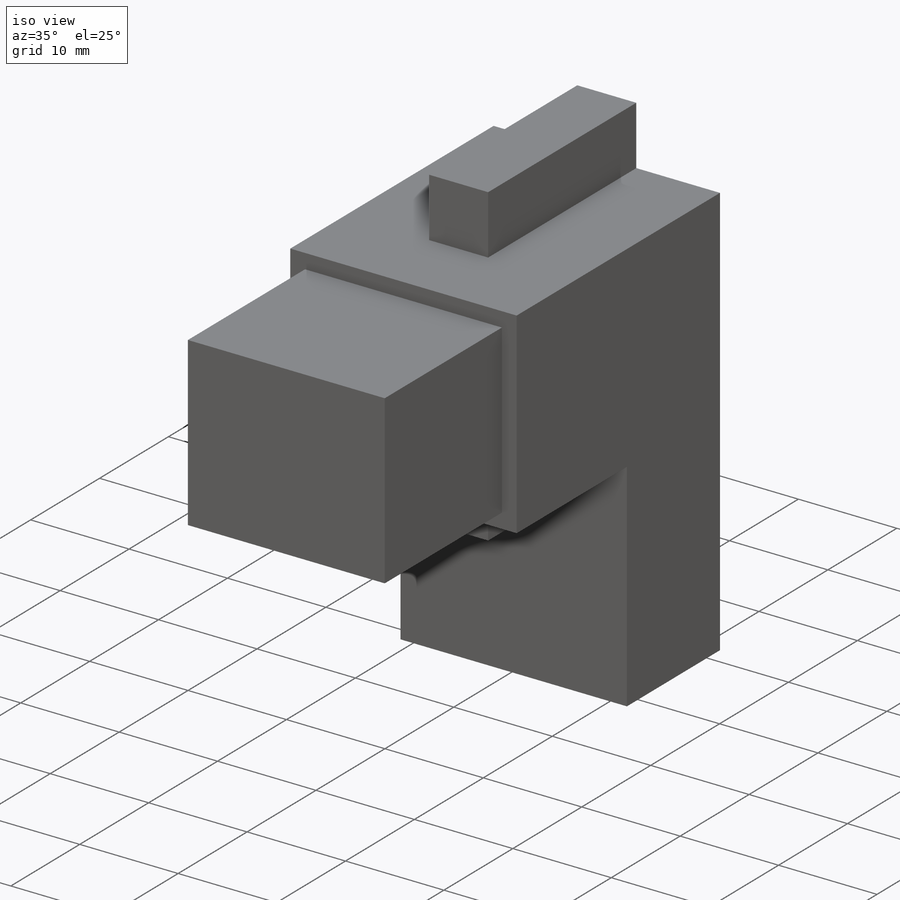
[diagram: iso view]
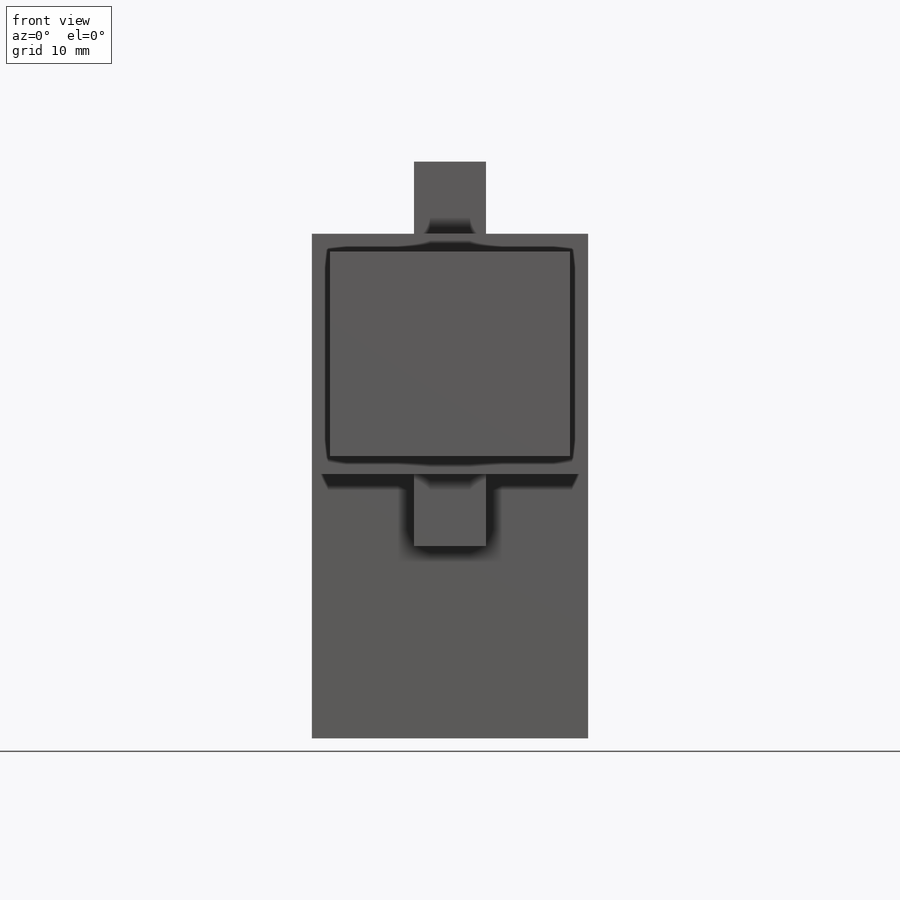
[diagram: front view]
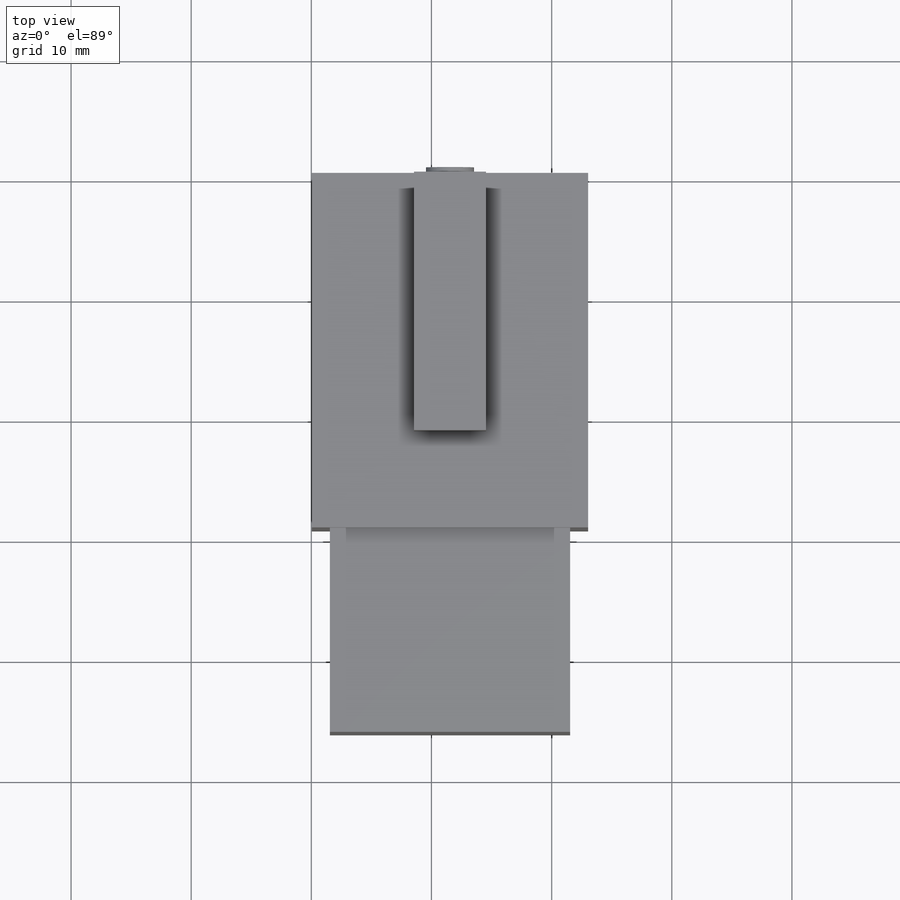
[diagram: top view]
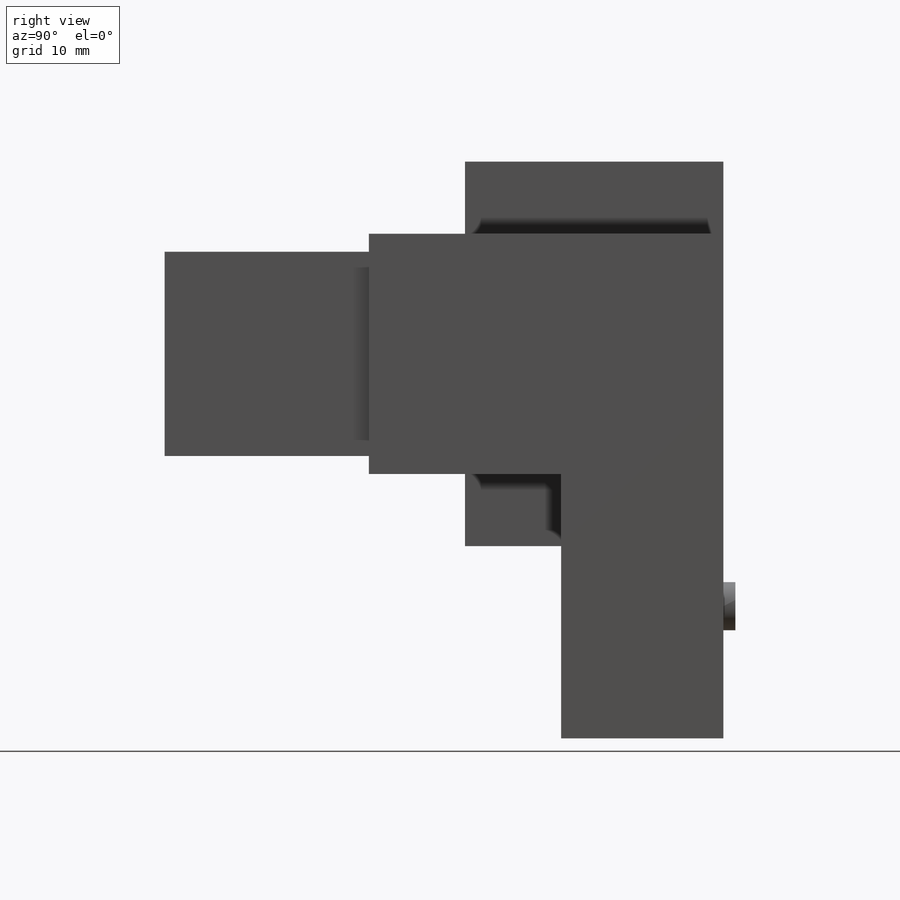
[diagram: right view]
SOLIDWORKS PART (.sldprt)
format: sldprt  version: not decoded by parser v0  size: 186,368 bytes
history: native  units: mm
features: sketch x6, extrude x6, plane x3, material x1 (+10 scaffold rows collapsed)
feature tree (26):
  scaffold x10  (default folders/planes/origin — collapsed)
  material  "Material <sin especificar>"
  plane  "Alzado"
  plane  "Planta"
  plane  "Vista lateral"
  sketch  "Croquis1"  dims[D1=6.0mm]
  extrude  "Saliente-Extruir1"  Depth=13.5mm
  sketch  "Croquis2"  dims[D1=~8.797255mm D2=11.5mm D3=11.0mm]
  extrude  "Saliente-Extruir2"  Depth=1mm
  sketch  "Croquis6"  dims[c1.D1=~5.981312mm c1.D2=~5.848581mm c2.D1=6.0mm c2.D2=6.0mm c2.D3=20.0mm c2.D4=8.5mm]
  extrude  "Saliente-Extruir3"  Depth=8mm
  sketch  "Croquis7"  dims[D1=6.0mm]
  extrude  "Saliente-Extruir4"  Depth=8mm
  sketch  "Croquis8"  dims[D1=20.0mm]
  extrude  "Saliente-Extruir5"  Depth=16mm
  sketch  "Croquis9"  dims[D1=20.0mm D2=1.5mm D3=1.5mm D4=1.5mm]
  extrude  "Saliente-Extruir6"  Depth=17mm
decode coverage: 12 of 12 modeling features carry decoded parameters
note: ~ marks probable driven/reference dimensions
note: suppression state not decoded; provenance and decode notes live in map.json
